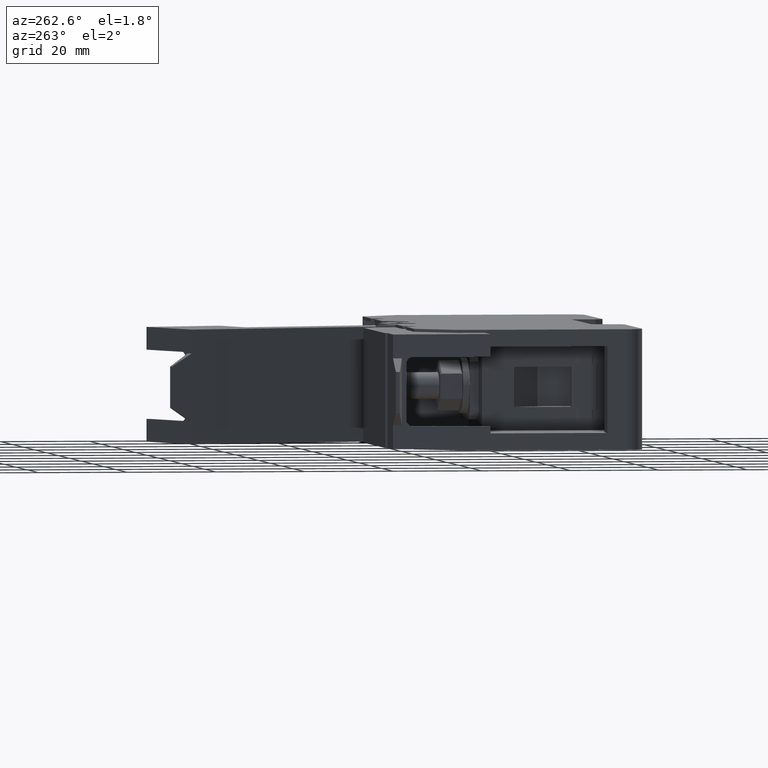
[diagram: clean part render]
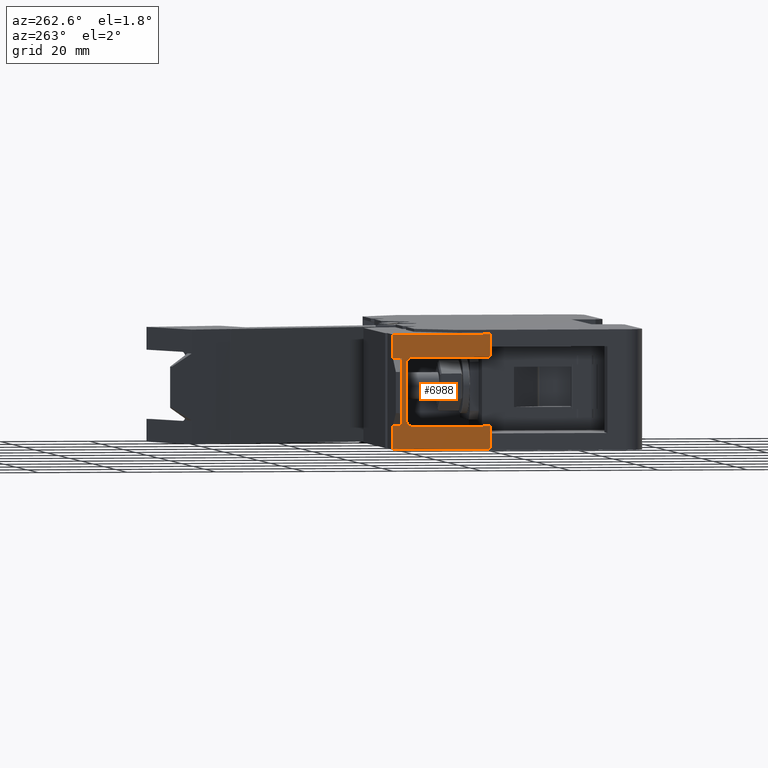
[diagram: same view with one face highlighted and labeled with its STEP entity id]
A machine part, auxiliary view. The second image highlights one B-rep face of the part: STEP entity #6988.
In plain terms, the highlighted planar face has unit normal (1, 0, 0).
Its self-contained STEP definition (entity closure, byte-faithful):
#1401 = LINE ( 'NONE', #1418, #3021 ) ;
#1418 = CARTESIAN_POINT ( 'NONE',  ( -63.35000631050770200, 30.69810303594847100, 20.99999999999950300 ) ) ;
#1420 = DIRECTION ( 'NONE',  ( -1.599436321127340000E-021, -0.0000000000000000000, 1.000000000000000000 ) ) ;
#1430 = LINE ( 'NONE', #1472, #3007 ) ;
#1454 = DIRECTION ( 'NONE',  ( 6.396618224657038500E-032, -1.000000000000000000, 1.023098352090155100E-052 ) ) ;
#1472 = CARTESIAN_POINT ( 'NONE',  ( -63.35000631050770200, -25.70000058700214800, 5.999999999652749800 ) ) ;
#2324 = EDGE_CURVE ( 'NONE', #13105, #13080, #6354, .T. ) ;
#2345 = EDGE_CURVE ( 'NONE', #13011, #12937, #6470, .T. ) ;
#2347 = EDGE_CURVE ( 'NONE', #13072, #13105, #4529, .T. ) ;
#2364 = EDGE_CURVE ( 'NONE', #13068, #13091, #6497, .T. ) ;
#2395 = EDGE_CURVE ( 'NONE', #13091, #13120, #4605, .T. ) ;
#2403 = EDGE_CURVE ( 'NONE', #13120, #13072, #6609, .T. ) ;
#2517 = EDGE_CURVE ( 'NONE', #13153, #12937, #4450, .T. ) ;
#2532 = EDGE_CURVE ( 'NONE', #13236, #13132, #3872, .T. ) ;
#2534 = EDGE_CURVE ( 'NONE', #13068, #13220, #3890, .T. ) ;
#2550 = EDGE_CURVE ( 'NONE', #13153, #13220, #3939, .T. ) ;
#2585 = EDGE_CURVE ( 'NONE', #12941, #13132, #4047, .T. ) ;
#2627 = EDGE_CURVE ( 'NONE', #13236, #13080, #4200, .T. ) ;
#2813 = AXIS2_PLACEMENT_3D ( 'NONE', #5675, #5632, #5676 ) ;
#3007 = VECTOR ( 'NONE', #1454, 1000.000000000000000 ) ;
#3021 = VECTOR ( 'NONE', #1420, 1000.000000000000000 ) ;
#3872 = LINE ( 'NONE', #3911, #4756 ) ;
#3877 = DIRECTION ( 'NONE',  ( 0.0000000000000000000, -0.0000000000000000000, 1.000000000000000000 ) ) ;
#3883 = CARTESIAN_POINT ( 'NONE',  ( -63.35000631072336600, 10.69999999953500800, 26.99999999999961300 ) ) ;
#3890 = LINE ( 'NONE', #3883, #4764 ) ;
#3907 = DIRECTION ( 'NONE',  ( 0.0000000000000000000, 1.000000000000000000, 0.0000000000000000000 ) ) ;
#3911 = CARTESIAN_POINT ( 'NONE',  ( -63.35000631112182400, 85.74268733253619200, 0.6499999999994879900 ) ) ;
#3939 = LINE ( 'NONE', #3943, #4528 ) ;
#3943 = CARTESIAN_POINT ( 'NONE',  ( -63.35000631167550700, 85.74268733253609300, 26.34999999999999800 ) ) ;
#3946 = DIRECTION ( 'NONE',  ( 0.0000000000000000000, -1.000000000000000000, -6.982966722218760200E-015 ) ) ;
#4047 = LINE ( 'NONE', #4048, #12033 ) ;
#4048 = CARTESIAN_POINT ( 'NONE',  ( -63.35000631087019200, 32.69999999826165300, -6.909038085517900100 ) ) ;
#4056 = DIRECTION ( 'NONE',  ( 0.0000000000000000000, -0.0000000000000000000, -1.000000000000000000 ) ) ;
#4196 = CARTESIAN_POINT ( 'NONE',  ( -63.35000631112182400, 10.69999999953500800, 26.99999999999961300 ) ) ;
#4200 = LINE ( 'NONE', #4196, #12054 ) ;
#4201 = DIRECTION ( 'NONE',  ( 0.0000000000000000000, -0.0000000000000000000, 1.000000000000000000 ) ) ;
#4412 = DIRECTION ( 'NONE',  ( 0.0000000000000000000, -0.0000000000000000000, -1.000000000000000000 ) ) ;
#4450 = LINE ( 'NONE', #4453, #4725 ) ;
#4453 = CARTESIAN_POINT ( 'NONE',  ( -63.35000631167550700, 32.69999999826165300, -6.909038085517900100 ) ) ;
#4466 = VECTOR ( 'NONE', #6380, 1000.000000000000000 ) ;
#4520 = VECTOR ( 'NONE', #6480, 1000.000000000000000 ) ;
#4528 = VECTOR ( 'NONE', #3946, 1000.000000000000000 ) ;
#4529 = CIRCLE ( 'NONE', #4530, 1.500000000000001300 ) ;
#4530 = AXIS2_PLACEMENT_3D ( 'NONE', #6438, #6448, #6479 ) ;
#4562 = VECTOR ( 'NONE', #6501, 1000.000000000000000 ) ;
#4585 = VECTOR ( 'NONE', #6649, 1000.000000000000000 ) ;
#4605 = CIRCLE ( 'NONE', #4608, 1.500000000000001300 ) ;
#4608 = AXIS2_PLACEMENT_3D ( 'NONE', #6575, #6601, #6589 ) ;
#4725 = VECTOR ( 'NONE', #4412, 1000.000000000000000 ) ;
#4756 = VECTOR ( 'NONE', #3907, 1000.000000000000000 ) ;
#4764 = VECTOR ( 'NONE', #3877, 1000.000000000000000 ) ;
#5627 = FACE_OUTER_BOUND ( 'NONE', #11041, .T. ) ;
#5632 = DIRECTION ( 'NONE',  ( 1.000000000000000000, 6.396618224657038500E-032, 1.599436321127340000E-021 ) ) ;
#5634 = PLANE ( 'NONE',  #2813 ) ;
#5675 = CARTESIAN_POINT ( 'NONE',  ( -63.35000631050770200, -25.70000058700214800, 20.99999999999950300 ) ) ;
#5676 = DIRECTION ( 'NONE',  ( 1.599436321127340000E-021, 0.0000000000000000000, -1.000000000000000000 ) ) ;
#6354 = LINE ( 'NONE', #6379, #4466 ) ;
#6379 = CARTESIAN_POINT ( 'NONE',  ( -63.35000631050770200, -25.70000058700214800, 5.749999999999490200 ) ) ;
#6380 = DIRECTION ( 'NONE',  ( 6.396618224657038500E-032, -1.000000000000000000, 1.023098352090155100E-052 ) ) ;
#6438 = CARTESIAN_POINT ( 'NONE',  ( -63.35000631077714000, 28.19999999826166000, 7.249999999999490200 ) ) ;
#6448 = DIRECTION ( 'NONE',  ( -1.000000000000000000, -3.999115853285195200E-011, 0.0000000000000000000 ) ) ;
#6458 = CARTESIAN_POINT ( 'NONE',  ( -63.35000631050770200, -25.70000058700214800, 21.00000000052278200 ) ) ;
#6470 = LINE ( 'NONE', #6458, #4520 ) ;
#6479 = DIRECTION ( 'NONE',  ( 3.998653260358268500E-011, -1.000000000000000000, 0.0000000000000000000 ) ) ;
#6480 = DIRECTION ( 'NONE',  ( -6.396618224657038500E-032, 1.000000000000000000, -1.023098352090155100E-052 ) ) ;
#6488 = CARTESIAN_POINT ( 'NONE',  ( -63.35000631050770200, -25.70000058700214800, 21.24999999999950300 ) ) ;
#6497 = LINE ( 'NONE', #6488, #4562 ) ;
#6501 = DIRECTION ( 'NONE',  ( -6.396618224657038500E-032, 1.000000000000000000, -1.023098352090155100E-052 ) ) ;
#6575 = CARTESIAN_POINT ( 'NONE',  ( -63.35000631072468000, 28.19999999826166000, 19.74999999999949900 ) ) ;
#6589 = DIRECTION ( 'NONE',  ( 3.998653260358268500E-011, -1.000000000000000000, 0.0000000000000000000 ) ) ;
#6601 = DIRECTION ( 'NONE',  ( -1.000000000000000000, -3.999115853285195200E-011, 0.0000000000000000000 ) ) ;
#6609 = LINE ( 'NONE', #6648, #4585 ) ;
#6648 = CARTESIAN_POINT ( 'NONE',  ( -63.35000631050770200, 29.69999999826166700, 20.99999999999950300 ) ) ;
#6649 = DIRECTION ( 'NONE',  ( 1.599436321127340000E-021, 0.0000000000000000000, -1.000000000000000000 ) ) ;
#6988 = ADVANCED_FACE ( 'NONE', ( #5627 ), #5634, .F. ) ;
#7144 = EDGE_CURVE ( 'NONE', #13060, #13011, #1401, .T. ) ;
#7153 = EDGE_CURVE ( 'NONE', #12941, #13060, #1430, .T. ) ;
#9912 = ORIENTED_EDGE ( 'NONE', *, *, #2347, .F. ) ;
#9913 = ORIENTED_EDGE ( 'NONE', *, *, #2364, .F. ) ;
#9914 = ORIENTED_EDGE ( 'NONE', *, *, #7144, .F. ) ;
#9915 = ORIENTED_EDGE ( 'NONE', *, *, #2517, .T. ) ;
#9925 = ORIENTED_EDGE ( 'NONE', *, *, #2532, .F. ) ;
#9930 = ORIENTED_EDGE ( 'NONE', *, *, #2585, .T. ) ;
#9944 = ORIENTED_EDGE ( 'NONE', *, *, #2534, .T. ) ;
#9964 = ORIENTED_EDGE ( 'NONE', *, *, #2395, .F. ) ;
#9965 = ORIENTED_EDGE ( 'NONE', *, *, #2345, .F. ) ;
#9980 = ORIENTED_EDGE ( 'NONE', *, *, #2403, .F. ) ;
#9992 = ORIENTED_EDGE ( 'NONE', *, *, #7153, .F. ) ;
#10002 = ORIENTED_EDGE ( 'NONE', *, *, #2550, .F. ) ;
#10003 = ORIENTED_EDGE ( 'NONE', *, *, #2627, .T. ) ;
#10007 = ORIENTED_EDGE ( 'NONE', *, *, #2324, .F. ) ;
#11041 = EDGE_LOOP ( 'NONE', ( #9925, #10003, #10007, #9912, #9980, #9964, #9913, #9944, #10002, #9915, #9965, #9914, #9992, #9930 ) ) ;
#12033 = VECTOR ( 'NONE', #4056, 1000.000000000000000 ) ;
#12054 = VECTOR ( 'NONE', #4201, 1000.000000000000000 ) ;
#12937 = VERTEX_POINT ( 'NONE', #14133 ) ;
#12941 = VERTEX_POINT ( 'NONE', #14159 ) ;
#13011 = VERTEX_POINT ( 'NONE', #14221 ) ;
#13060 = VERTEX_POINT ( 'NONE', #14230 ) ;
#13068 = VERTEX_POINT ( 'NONE', #14240 ) ;
#13072 = VERTEX_POINT ( 'NONE', #14241 ) ;
#13080 = VERTEX_POINT ( 'NONE', #14288 ) ;
#13091 = VERTEX_POINT ( 'NONE', #14308 ) ;
#13105 = VERTEX_POINT ( 'NONE', #14356 ) ;
#13120 = VERTEX_POINT ( 'NONE', #14325 ) ;
#13132 = VERTEX_POINT ( 'NONE', #14347 ) ;
#13153 = VERTEX_POINT ( 'NONE', #14360 ) ;
#13220 = VERTEX_POINT ( 'NONE', #14453 ) ;
#13236 = VERTEX_POINT ( 'NONE', #14478 ) ;
#14133 = CARTESIAN_POINT ( 'NONE',  ( -63.35000631128625100, 32.69999999826165300, 21.00000000031641900 ) ) ;
#14159 = CARTESIAN_POINT ( 'NONE',  ( -63.35000631050770200, 32.69999999826164600, 5.999999999652749800 ) ) ;
#14221 = CARTESIAN_POINT ( 'NONE',  ( -63.35000631062316500, 30.69810303593023800, 21.00000000071576900 ) ) ;
#14230 = CARTESIAN_POINT ( 'NONE',  ( -63.35000631067093500, 30.69810303594847100, 5.999999999428494500 ) ) ;
#14240 = CARTESIAN_POINT ( 'NONE',  ( -63.35000631065148000, 10.69999999953500600, 21.24999999999950300 ) ) ;
#14241 = CARTESIAN_POINT ( 'NONE',  ( -63.35000631067242000, 29.69999999826166700, 7.249999999999489300 ) ) ;
#14288 = CARTESIAN_POINT ( 'NONE',  ( -63.35000631091712400, 10.69999999953500600, 5.749999999999492000 ) ) ;
#14308 = CARTESIAN_POINT ( 'NONE',  ( -63.35000631061618700, 28.19999999826165600, 21.24999999999950300 ) ) ;
#14325 = CARTESIAN_POINT ( 'NONE',  ( -63.35000631064618700, 29.69999999826166700, 19.74999999999949900 ) ) ;
#14347 = CARTESIAN_POINT ( 'NONE',  ( -63.35000631075185900, 32.69999999826164600, 0.6499999999994877700 ) ) ;
#14356 = CARTESIAN_POINT ( 'NONE',  ( -63.35000631064241400, 28.19999999826166400, 5.749999999999490200 ) ) ;
#14360 = CARTESIAN_POINT ( 'NONE',  ( -63.35000631167550700, 32.69999999845779100, 26.34999999999962800 ) ) ;
#14453 = CARTESIAN_POINT ( 'NONE',  ( -63.35000631135813600, 10.69999999953500100, 26.34999999999947600 ) ) ;
#14478 = CARTESIAN_POINT ( 'NONE',  ( -63.35000631112182400, 10.69999999953500800, 0.6499999999994877700 ) ) ;